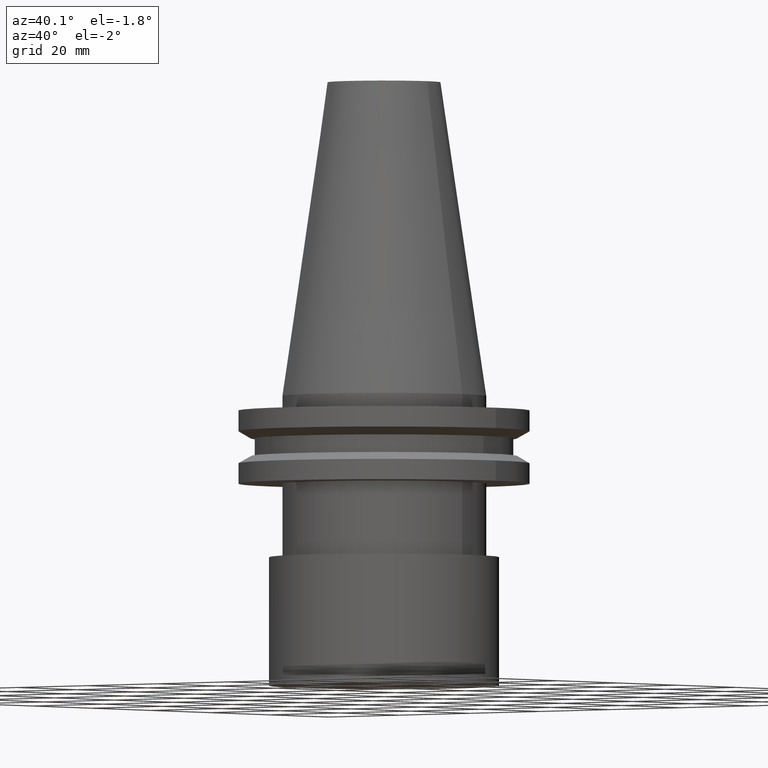
[diagram: clean part render]
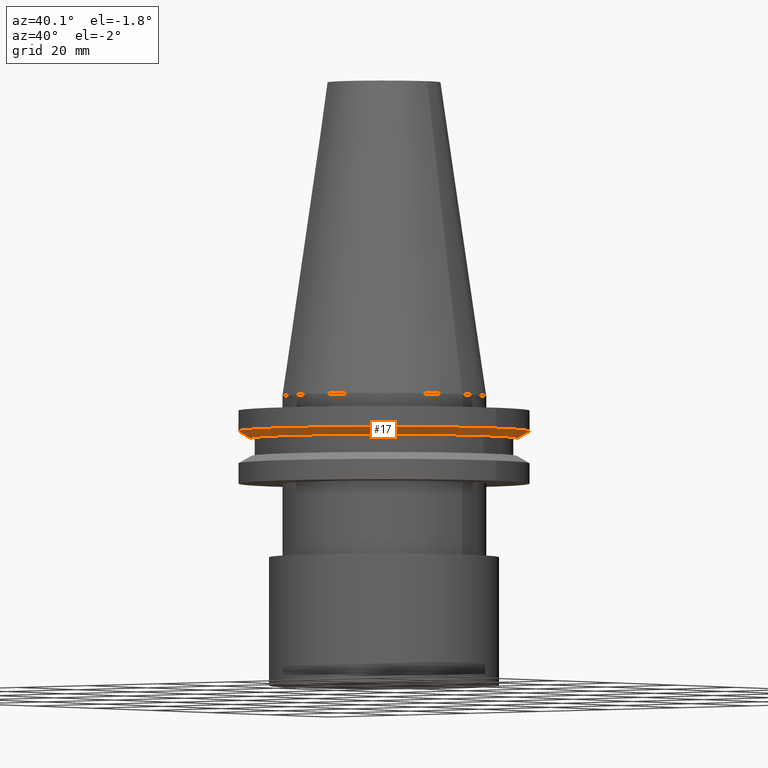
[diagram: same view with one face highlighted and labeled with its STEP entity id]
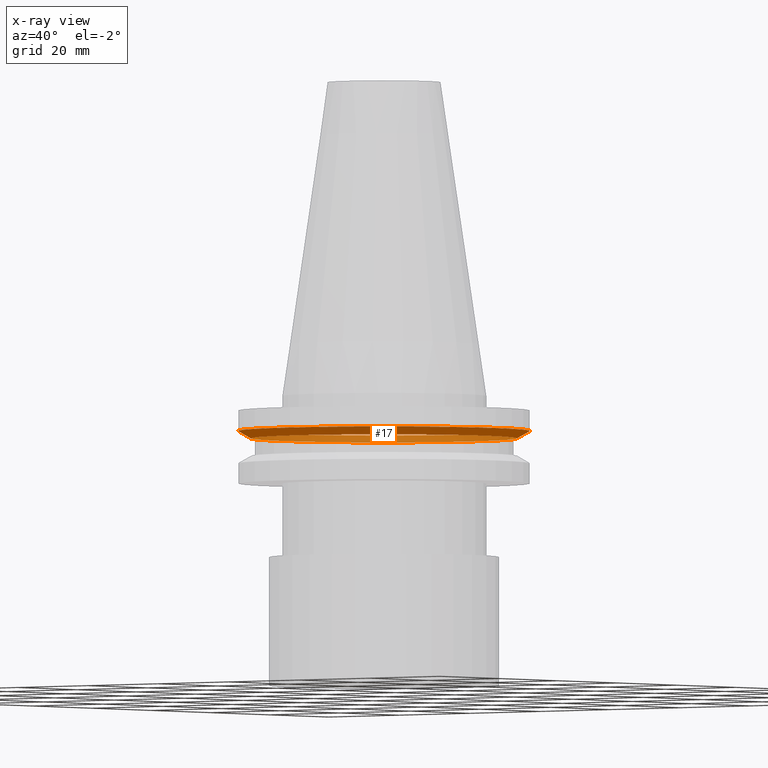
[diagram: x-ray of the same camera — body ghosted, the highlighted face saturated]
A machine part, auxiliary view. The second image highlights one B-rep face of the part: STEP entity #17.
The next image is the same camera in x-ray: the body ghosted, the highlighted face saturated — about 41% of this face is hidden behind the body in this view.
In plain terms, the highlighted conical surface has half-angle 60 deg.
Its self-contained STEP definition (entity closure, byte-faithful):
#9 = CIRCLE ( 'NONE', #68, 31.75000000000000000 ) ;
#17 = ADVANCED_FACE ( 'NONE', ( #181, #27 ), #180, .T. ) ;
#27 = FACE_BOUND ( 'NONE', #88, .T. ) ;
#51 = AXIS2_PLACEMENT_3D ( 'NONE', #125, #242, #366 ) ;
#64 = DIRECTION ( 'NONE',  ( 1.000000000000000000, 0.000000000000000000, 0.000000000000000000 ) ) ;
#68 = AXIS2_PLACEMENT_3D ( 'NONE', #218, #336, #64 ) ;
#78 = VERTEX_POINT ( 'NONE', #302 ) ;
#80 = CIRCLE ( 'NONE', #316, 28.97919780457007732 ) ;
#88 = EDGE_LOOP ( 'NONE', ( #155 ) ) ;
#125 = CARTESIAN_POINT ( 'NONE',  ( 0.000000000000000000, 0.000000000000000000, -9.205000000000005400 ) ) ;
#132 = CARTESIAN_POINT ( 'NONE',  ( 0.000000000000000000, 0.000000000000000000, -9.205000000000005400 ) ) ;
#155 = ORIENTED_EDGE ( 'NONE', *, *, #258, .T. ) ;
#180 = CONICAL_SURFACE ( 'NONE', #51, 28.97919780457007732, 1.047197551196598297 ) ;
#181 = FACE_OUTER_BOUND ( 'NONE', #329, .T. ) ;
#182 = DIRECTION ( 'NONE',  ( -0.000000000000000000, -0.000000000000000000, 1.000000000000000000 ) ) ;
#218 = CARTESIAN_POINT ( 'NONE',  ( 0.000000000000000000, 0.000000000000000000, -7.605276606597335842 ) ) ;
#236 = EDGE_CURVE ( 'NONE', #388, #388, #9, .T. ) ;
#242 = DIRECTION ( 'NONE',  ( -0.000000000000000000, -0.000000000000000000, 1.000000000000000000 ) ) ;
#253 = DIRECTION ( 'NONE',  ( 1.000000000000000000, 0.000000000000000000, 0.000000000000000000 ) ) ;
#258 = EDGE_CURVE ( 'NONE', #78, #78, #80, .T. ) ;
#302 = CARTESIAN_POINT ( 'NONE',  ( 28.97919780457007732, 0.000000000000000000, -9.205000000000005400 ) ) ;
#316 = AXIS2_PLACEMENT_3D ( 'NONE', #132, #182, #253 ) ;
#326 = ORIENTED_EDGE ( 'NONE', *, *, #236, .F. ) ;
#329 = EDGE_LOOP ( 'NONE', ( #326 ) ) ;
#336 = DIRECTION ( 'NONE',  ( -0.000000000000000000, -0.000000000000000000, 1.000000000000000000 ) ) ;
#361 = CARTESIAN_POINT ( 'NONE',  ( 31.75000000000000000, 0.000000000000000000, -7.605276606597335842 ) ) ;
#366 = DIRECTION ( 'NONE',  ( 1.000000000000000000, 0.000000000000000000, 0.000000000000000000 ) ) ;
#388 = VERTEX_POINT ( 'NONE', #361 ) ;